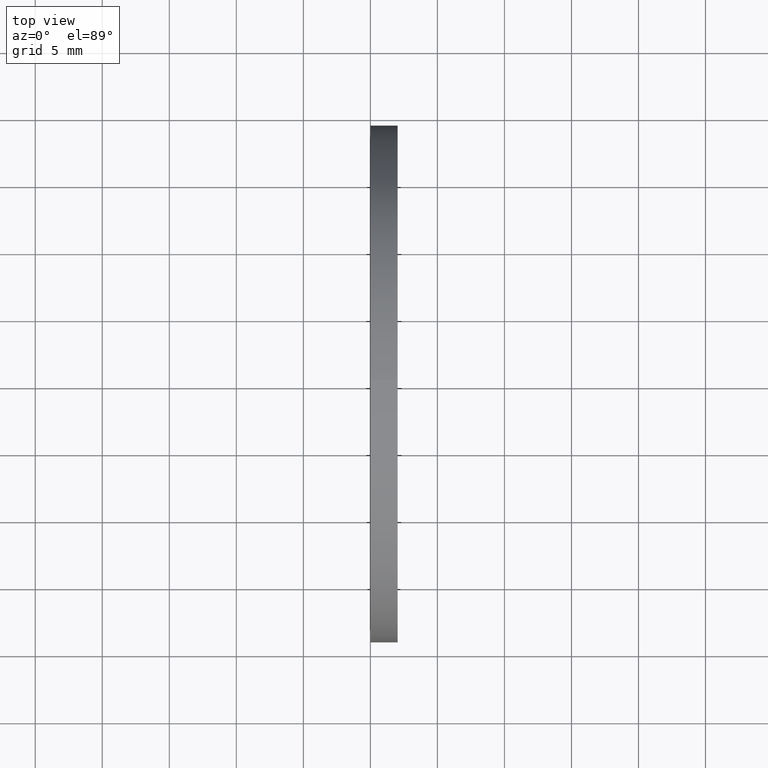
[diagram: clean part render]
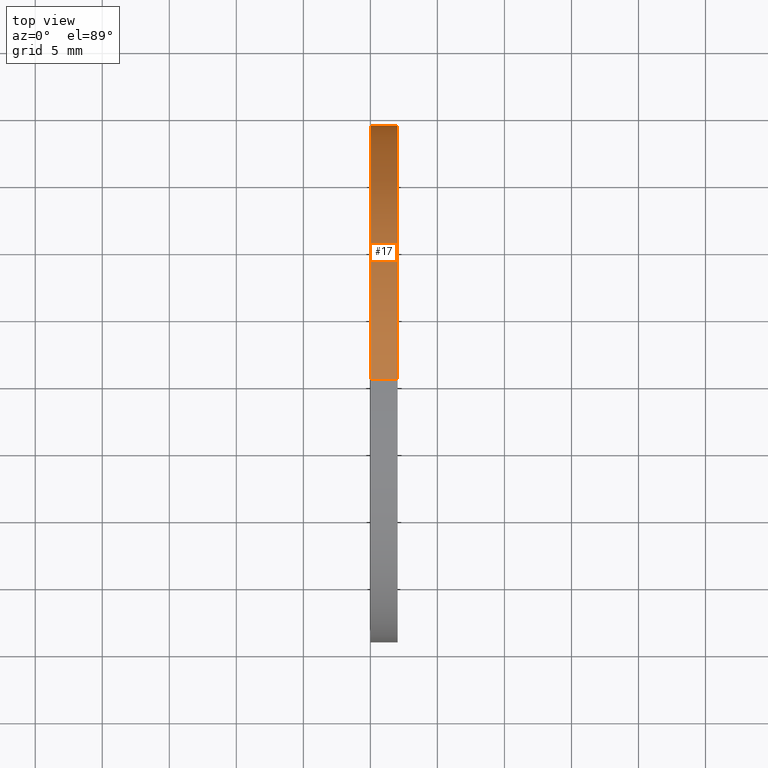
[diagram: same view with one face highlighted and labeled with its STEP entity id]
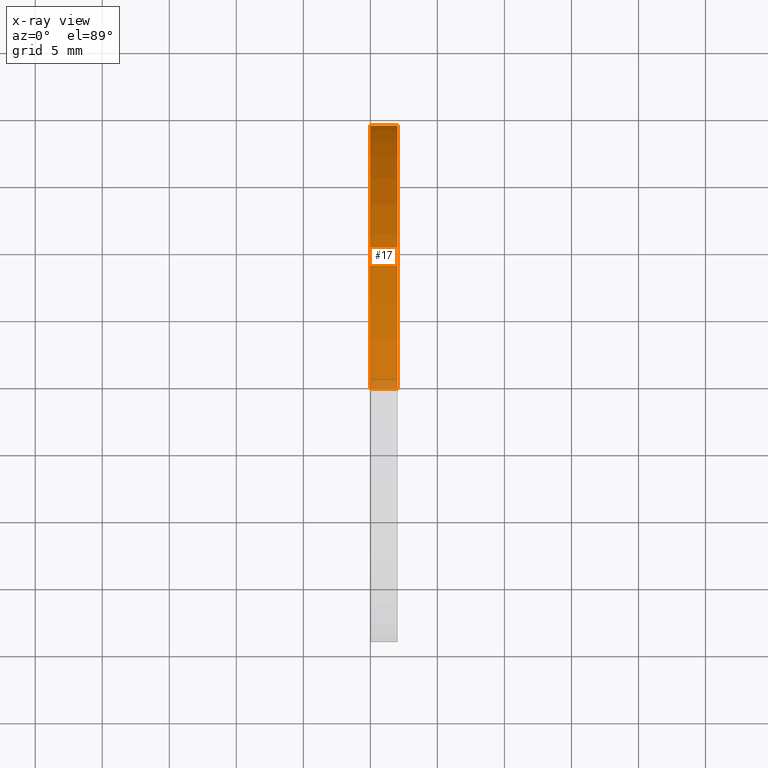
[diagram: x-ray of the same camera — body ghosted, the highlighted face saturated]
A machine part, top view. The second image highlights one B-rep face of the part: STEP entity #17.
The next image is the same camera in x-ray: the body ghosted, the highlighted face saturated — about 3% of this face is hidden behind the body in this view.
In plain terms, the highlighted cylindrical surface (partial cylindrical patch) has radius 19.304 mm, axis along (-1, 0, 0).
Its self-contained STEP definition (entity closure, byte-faithful):
#8 = VERTEX_POINT ( 'NONE', #128 ) ;
#9 = ORIENTED_EDGE ( 'NONE', *, *, #49, .F. ) ;
#11 = VERTEX_POINT ( 'NONE', #59 ) ;
#17 = ADVANCED_FACE ( 'NONE', ( #83 ), #126, .T. ) ;
#18 = ORIENTED_EDGE ( 'NONE', *, *, #22, .T. ) ;
#19 = VERTEX_POINT ( 'NONE', #127 ) ;
#20 = ORIENTED_EDGE ( 'NONE', *, *, #33, .F. ) ;
#22 = EDGE_CURVE ( 'NONE', #23, #11, #65, .T. ) ;
#23 = VERTEX_POINT ( 'NONE', #66 ) ;
#25 = ORIENTED_EDGE ( 'NONE', *, *, #26, .T. ) ;
#26 = EDGE_CURVE ( 'NONE', #11, #8, #85, .T. ) ;
#27 = EDGE_LOOP ( 'NONE', ( #18, #25, #9, #20 ) ) ;
#33 = EDGE_CURVE ( 'NONE', #23, #19, #149, .T. ) ;
#49 = EDGE_CURVE ( 'NONE', #19, #8, #133, .T. ) ;
#59 = CARTESIAN_POINT ( 'NONE',  ( 0.07999999999999996000, 9.307315673519883500E-017, -0.7599999999999999000 ) ) ;
#61 = DIRECTION ( 'NONE',  ( 0.0000000000000000000, 0.0000000000000000000, 1.000000000000000000 ) ) ;
#62 = DIRECTION ( 'NONE',  ( -1.000000000000000000, 0.0000000000000000000, 0.0000000000000000000 ) ) ;
#63 = CARTESIAN_POINT ( 'NONE',  ( 0.07999999999999996000, 0.0000000000000000000, 0.0000000000000000000 ) ) ;
#64 = AXIS2_PLACEMENT_3D ( 'NONE', #63, #62, #61 ) ;
#65 = CIRCLE ( 'NONE', #64, 0.7599999999999999000 ) ;
#66 = CARTESIAN_POINT ( 'NONE',  ( 0.07999999999999996000, 0.0000000000000000000, 0.7599999999999999000 ) ) ;
#78 = CARTESIAN_POINT ( 'NONE',  ( -1.721125226614714300, 0.0000000000000000000, 0.0000000000000000000 ) ) ;
#83 = FACE_OUTER_BOUND ( 'NONE', #27, .T. ) ;
#84 = CARTESIAN_POINT ( 'NONE',  ( -1.721125226614714300, 9.307315673519883500E-017, -0.7599999999999999000 ) ) ;
#85 = LINE ( 'NONE', #84, #95 ) ;
#94 = DIRECTION ( 'NONE',  ( -1.000000000000000000, 0.0000000000000000000, 0.0000000000000000000 ) ) ;
#95 = VECTOR ( 'NONE', #94, 39.37007874015748100 ) ;
#113 = DIRECTION ( 'NONE',  ( 0.0000000000000000000, 0.0000000000000000000, 1.000000000000000000 ) ) ;
#123 = DIRECTION ( 'NONE',  ( 0.0000000000000000000, 0.0000000000000000000, 1.000000000000000000 ) ) ;
#124 = DIRECTION ( 'NONE',  ( -1.000000000000000000, 0.0000000000000000000, 0.0000000000000000000 ) ) ;
#125 = AXIS2_PLACEMENT_3D ( 'NONE', #78, #124, #123 ) ;
#126 = CYLINDRICAL_SURFACE ( 'NONE', #125, 0.7599999999999999000 ) ;
#127 = CARTESIAN_POINT ( 'NONE',  ( 0.0000000000000000000, 0.0000000000000000000, 0.7599999999999999000 ) ) ;
#128 = CARTESIAN_POINT ( 'NONE',  ( 0.0000000000000000000, 9.307315673519883500E-017, -0.7599999999999999000 ) ) ;
#130 = DIRECTION ( 'NONE',  ( -1.000000000000000000, 0.0000000000000000000, 0.0000000000000000000 ) ) ;
#131 = CARTESIAN_POINT ( 'NONE',  ( 0.0000000000000000000, 0.0000000000000000000, 0.0000000000000000000 ) ) ;
#132 = AXIS2_PLACEMENT_3D ( 'NONE', #131, #130, #113 ) ;
#133 = CIRCLE ( 'NONE', #132, 0.7599999999999999000 ) ;
#149 = LINE ( 'NONE', #172, #171 ) ;
#170 = DIRECTION ( 'NONE',  ( -1.000000000000000000, 0.0000000000000000000, 0.0000000000000000000 ) ) ;
#171 = VECTOR ( 'NONE', #170, 39.37007874015748100 ) ;
#172 = CARTESIAN_POINT ( 'NONE',  ( -1.721125226614714300, 0.0000000000000000000, 0.7599999999999999000 ) ) ;